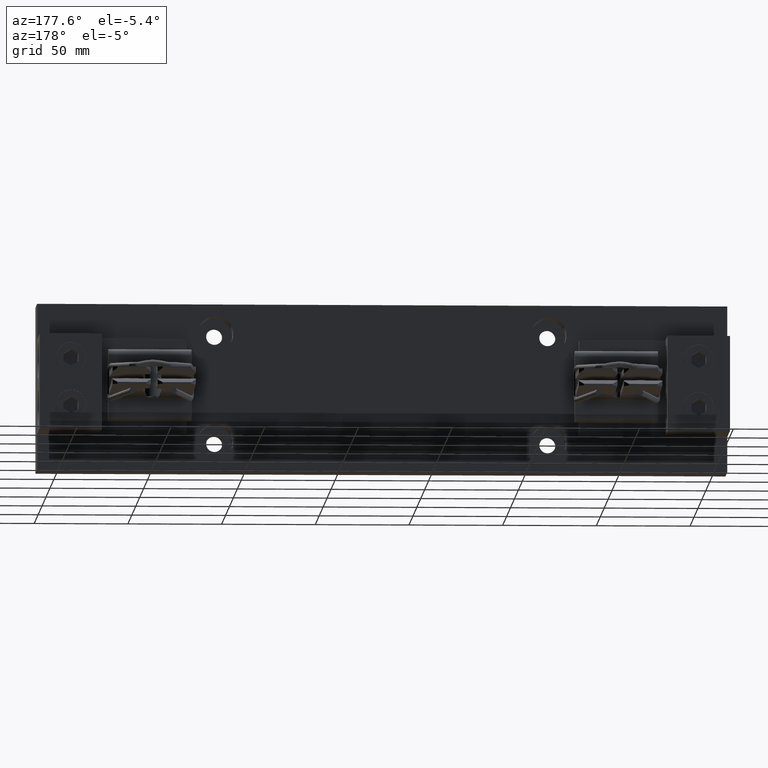
[diagram: clean part render]
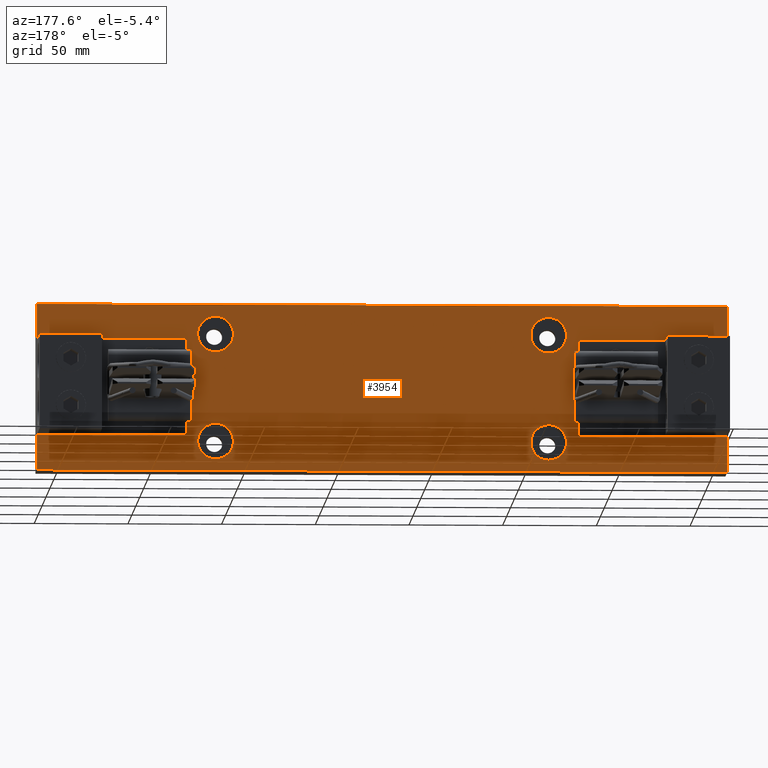
[diagram: same view with one face highlighted and labeled with its STEP entity id]
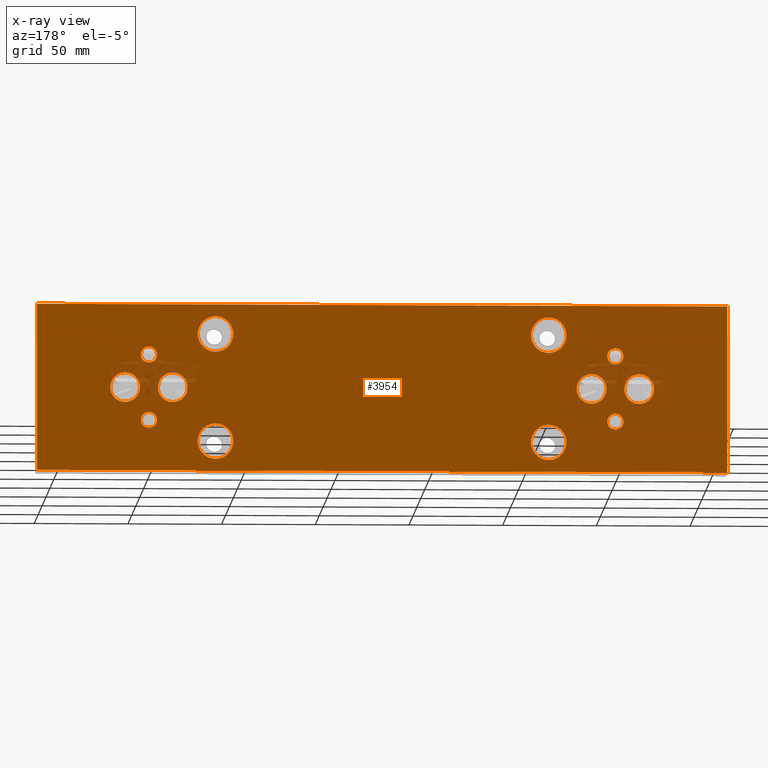
[diagram: x-ray of the same camera — body ghosted, the highlighted face saturated]
A machine part, auxiliary view. The second image highlights one B-rep face of the part: STEP entity #3954.
The next image is the same camera in x-ray: the body ghosted, the highlighted face saturated — about 3% of this face is hidden behind the body in this view.
In plain terms, the highlighted planar face has unit normal (0, 1, 0).
Its self-contained STEP definition (entity closure, byte-faithful):
#159 = FACE_BOUND ( 'NONE', #12221, .T. ) ;
#246 = CARTESIAN_POINT ( 'NONE',  ( 9.800000000000000700, -0.3120000000000000000, 0.6899999999999986100 ) ) ;
#342 = CIRCLE ( 'NONE', #13129, 0.3124999999999993300 ) ;
#612 = AXIS2_PLACEMENT_3D ( 'NONE', #3263, #16590, #5165 ) ;
#680 = VECTOR ( 'NONE', #15142, 39.37007874015748100 ) ;
#770 = VERTEX_POINT ( 'NONE', #16474 ) ;
#798 = FACE_BOUND ( 'NONE', #14812, .T. ) ;
#843 = DIRECTION ( 'NONE',  ( -0.0000000000000000000, -1.000000000000000000, -0.0000000000000000000 ) ) ;
#992 = DIRECTION ( 'NONE',  ( 0.0000000000000000000, 1.000000000000000000, 0.0000000000000000000 ) ) ;
#1105 = CARTESIAN_POINT ( 'NONE',  ( 0.5000000000000006700, -0.3120000000000000000, -2.390366994456230100E-016 ) ) ;
#1227 = CARTESIAN_POINT ( 'NONE',  ( 0.5000000000000006700, -0.3120000000000000000, 0.3124999999999996100 ) ) ;
#1287 = ORIENTED_EDGE ( 'NONE', *, *, #17663, .T. ) ;
#1779 = DIRECTION ( 'NONE',  ( -0.0000000000000000000, 1.000000000000000000, -0.0000000000000000000 ) ) ;
#1922 = CARTESIAN_POINT ( 'NONE',  ( 5.463695987328526400E-016, -0.3120000000000000000, 0.5204999999999987400 ) ) ;
#1967 = FACE_BOUND ( 'NONE', #13149, .T. ) ;
#2164 = DIRECTION ( 'NONE',  ( 0.0000000000000000000, 0.0000000000000000000, -1.000000000000000000 ) ) ;
#2362 = ORIENTED_EDGE ( 'NONE', *, *, #10186, .T. ) ;
#2555 = ORIENTED_EDGE ( 'NONE', *, *, #24280, .T. ) ;
#2640 = ORIENTED_EDGE ( 'NONE', *, *, #6850, .F. ) ;
#2656 = CIRCLE ( 'NONE', #612, 0.3749999999999996700 ) ;
#2742 = ORIENTED_EDGE ( 'NONE', *, *, #17674, .T. ) ;
#2945 = AXIS2_PLACEMENT_3D ( 'NONE', #8942, #22255, #10827 ) ;
#3022 = DIRECTION ( 'NONE',  ( 0.0000000000000000000, 0.0000000000000000000, 1.000000000000000000 ) ) ;
#3263 = CARTESIAN_POINT ( 'NONE',  ( 8.400000000000002100, -0.3120000000000000000, -1.129999999999999700 ) ) ;
#3341 = CARTESIAN_POINT ( 'NONE',  ( -2.349999999999999200, -0.3120000000000000000, 1.750000000000000200 ) ) ;
#3660 = CIRCLE ( 'NONE', #15839, 0.3749999999999996700 ) ;
#3663 = CARTESIAN_POINT ( 'NONE',  ( 12.15000000000000200, -0.3120000000000000000, -1.750000000000001300 ) ) ;
#3954 = ADVANCED_FACE ( 'NONE', ( #10919, #16605, #1967, #16024, #5867, #798, #20449, #15388, #10310, #5269, #159, #19854, #14799 ), #24142, .T. ) ;
#4386 = LINE ( 'NONE', #23879, #14526 ) ;
#4810 = CARTESIAN_POINT ( 'NONE',  ( 1.400000000000001000, -0.3120000000000000000, 1.504999999999999900 ) ) ;
#5000 = EDGE_LOOP ( 'NONE', ( #2640 ) ) ;
#5165 = DIRECTION ( 'NONE',  ( 0.0000000000000000000, 0.0000000000000000000, 1.000000000000000000 ) ) ;
#5210 = CARTESIAN_POINT ( 'NONE',  ( 1.400000000000001000, -0.3120000000000000000, -0.7550000000000000000 ) ) ;
#5249 = DIRECTION ( 'NONE',  ( -0.0000000000000000000, -0.0000000000000000000, 1.000000000000000000 ) ) ;
#5269 = FACE_BOUND ( 'NONE', #5000, .T. ) ;
#5482 = EDGE_LOOP ( 'NONE', ( #2555 ) ) ;
#5630 = ORIENTED_EDGE ( 'NONE', *, *, #24121, .T. ) ;
#5827 = CARTESIAN_POINT ( 'NONE',  ( 9.300000000000002500, -0.3120000000000000000, -2.390366994456230100E-016 ) ) ;
#5867 = FACE_BOUND ( 'NONE', #5482, .T. ) ;
#6573 = VECTOR ( 'NONE', #18344, 39.37007874015748100 ) ;
#6634 = DIRECTION ( 'NONE',  ( -0.0000000000000000000, -1.000000000000000000, -0.0000000000000000000 ) ) ;
#6850 = EDGE_CURVE ( 'NONE', #20130, #20130, #13644, .T. ) ;
#6961 = CARTESIAN_POINT ( 'NONE',  ( -2.349999999999999200, -0.3120000000000000000, 1.750000000000000200 ) ) ;
#7032 = ORIENTED_EDGE ( 'NONE', *, *, #21193, .F. ) ;
#7039 = AXIS2_PLACEMENT_3D ( 'NONE', #246, #13585, #2164 ) ;
#7492 = CARTESIAN_POINT ( 'NONE',  ( 1.400000000000001000, -0.3120000000000000000, -1.129999999999999700 ) ) ;
#7654 = CIRCLE ( 'NONE', #15478, 0.3124999999999993300 ) ;
#7734 = DIRECTION ( 'NONE',  ( 0.0000000000000000000, 0.0000000000000000000, 1.000000000000000000 ) ) ;
#7746 = ORIENTED_EDGE ( 'NONE', *, *, #10338, .F. ) ;
#8399 = EDGE_CURVE ( 'NONE', #18930, #18930, #20484, .T. ) ;
#8629 = EDGE_CURVE ( 'NONE', #8857, #8857, #7654, .T. ) ;
#8857 = VERTEX_POINT ( 'NONE', #16321 ) ;
#8942 = CARTESIAN_POINT ( 'NONE',  ( 9.800000000000000700, -0.3120000000000000000, -0.6900000000000012800 ) ) ;
#8969 = CARTESIAN_POINT ( 'NONE',  ( 4.900000000000002100, -0.3120000000000000000, -2.390366994456230100E-016 ) ) ;
#9103 = VERTEX_POINT ( 'NONE', #9440 ) ;
#9399 = DIRECTION ( 'NONE',  ( 0.0000000000000000000, 0.0000000000000000000, 1.000000000000000000 ) ) ;
#9440 = CARTESIAN_POINT ( 'NONE',  ( 8.400000000000002100, -0.3120000000000000000, -0.7550000000000000000 ) ) ;
#9869 = VERTEX_POINT ( 'NONE', #11509 ) ;
#10069 = EDGE_CURVE ( 'NONE', #21022, #21022, #12079, .T. ) ;
#10089 = ORIENTED_EDGE ( 'NONE', *, *, #22653, .F. ) ;
#10133 = CIRCLE ( 'NONE', #22102, 0.3749999999999996700 ) ;
#10151 = EDGE_CURVE ( 'NONE', #15994, #15994, #14774, .T. ) ;
#10186 = EDGE_CURVE ( 'NONE', #10885, #10885, #18348, .T. ) ;
#10241 = CARTESIAN_POINT ( 'NONE',  ( 12.15000000000000200, -0.3120000000000000000, -1.750000000000001300 ) ) ;
#10251 = VERTEX_POINT ( 'NONE', #24616 ) ;
#10310 = FACE_BOUND ( 'NONE', #19312, .T. ) ;
#10336 = AXIS2_PLACEMENT_3D ( 'NONE', #5827, #19118, #7734 ) ;
#10338 = EDGE_CURVE ( 'NONE', #770, #770, #10133, .T. ) ;
#10623 = ORIENTED_EDGE ( 'NONE', *, *, #8399, .T. ) ;
#10827 = DIRECTION ( 'NONE',  ( 0.0000000000000000000, 0.0000000000000000000, -1.000000000000000000 ) ) ;
#10849 = DIRECTION ( 'NONE',  ( 0.0000000000000000000, -0.0000000000000000000, 1.000000000000000000 ) ) ;
#10885 = VERTEX_POINT ( 'NONE', #14549 ) ;
#10919 = FACE_BOUND ( 'NONE', #11253, .T. ) ;
#10999 = VECTOR ( 'NONE', #5249, 39.37007874015748100 ) ;
#11043 = DIRECTION ( 'NONE',  ( -0.0000000000000000000, 1.000000000000000000, -0.0000000000000000000 ) ) ;
#11198 = DIRECTION ( 'NONE',  ( 0.0000000000000000000, 1.000000000000000000, 0.0000000000000000000 ) ) ;
#11253 = EDGE_LOOP ( 'NONE', ( #17678 ) ) ;
#11407 = LINE ( 'NONE', #3663, #680 ) ;
#11439 = ORIENTED_EDGE ( 'NONE', *, *, #10069, .T. ) ;
#11452 = EDGE_CURVE ( 'NONE', #14077, #23867, #4386, .T. ) ;
#11509 = CARTESIAN_POINT ( 'NONE',  ( -2.349999999999999200, -0.3120000000000000000, -1.749999999999999600 ) ) ;
#12079 = CIRCLE ( 'NONE', #21778, 0.1694999999999999300 ) ;
#12106 = VERTEX_POINT ( 'NONE', #6961 ) ;
#12124 = EDGE_LOOP ( 'NONE', ( #2362 ) ) ;
#12221 = EDGE_LOOP ( 'NONE', ( #23654 ) ) ;
#12228 = CARTESIAN_POINT ( 'NONE',  ( 5.463695987328526400E-016, -0.3120000000000000000, 0.6899999999999986100 ) ) ;
#12327 = AXIS2_PLACEMENT_3D ( 'NONE', #1105, #14418, #3022 ) ;
#12357 = VERTEX_POINT ( 'NONE', #5210 ) ;
#12365 = CARTESIAN_POINT ( 'NONE',  ( -0.4999999999999990600, -0.3120000000000000000, -2.390366994456230100E-016 ) ) ;
#12411 = DIRECTION ( 'NONE',  ( 0.0000000000000000000, 0.0000000000000000000, -1.000000000000000000 ) ) ;
#12609 = CARTESIAN_POINT ( 'NONE',  ( 5.463695987328526400E-016, -0.3120000000000000000, -0.8595000000000011500 ) ) ;
#12857 = CIRCLE ( 'NONE', #13939, 0.1694999999999999300 ) ;
#13129 = AXIS2_PLACEMENT_3D ( 'NONE', #12365, #992, #14298 ) ;
#13149 = EDGE_LOOP ( 'NONE', ( #14600 ) ) ;
#13169 = AXIS2_PLACEMENT_3D ( 'NONE', #13182, #1779, #15100 ) ;
#13182 = CARTESIAN_POINT ( 'NONE',  ( 1.400000000000001000, -0.3120000000000000000, 1.130000000000000300 ) ) ;
#13253 = CARTESIAN_POINT ( 'NONE',  ( 9.300000000000002500, -0.3120000000000000000, 0.3124999999999990600 ) ) ;
#13456 = EDGE_CURVE ( 'NONE', #12357, #12357, #3660, .T. ) ;
#13533 = VERTEX_POINT ( 'NONE', #13253 ) ;
#13585 = DIRECTION ( 'NONE',  ( -0.0000000000000000000, -1.000000000000000000, -0.0000000000000000000 ) ) ;
#13644 = CIRCLE ( 'NONE', #13169, 0.3749999999999996700 ) ;
#13939 = AXIS2_PLACEMENT_3D ( 'NONE', #12228, #843, #14168 ) ;
#13994 = ORIENTED_EDGE ( 'NONE', *, *, #11452, .T. ) ;
#14077 = VERTEX_POINT ( 'NONE', #17008 ) ;
#14168 = DIRECTION ( 'NONE',  ( 0.0000000000000000000, 0.0000000000000000000, -1.000000000000000000 ) ) ;
#14298 = DIRECTION ( 'NONE',  ( 0.0000000000000000000, 0.0000000000000000000, 1.000000000000000000 ) ) ;
#14377 = CARTESIAN_POINT ( 'NONE',  ( 9.800000000000000700, -0.3120000000000000000, 0.5204999999999993000 ) ) ;
#14418 = DIRECTION ( 'NONE',  ( 0.0000000000000000000, 1.000000000000000000, 0.0000000000000000000 ) ) ;
#14526 = VECTOR ( 'NONE', #12411, 39.37007874015748100 ) ;
#14549 = CARTESIAN_POINT ( 'NONE',  ( 9.800000000000000700, -0.3120000000000000000, -0.8595000000000006000 ) ) ;
#14600 = ORIENTED_EDGE ( 'NONE', *, *, #10151, .F. ) ;
#14774 = CIRCLE ( 'NONE', #12327, 0.3124999999999998900 ) ;
#14799 = FACE_OUTER_BOUND ( 'NONE', #19449, .T. ) ;
#14812 = EDGE_LOOP ( 'NONE', ( #11439 ) ) ;
#14970 = EDGE_LOOP ( 'NONE', ( #7032 ) ) ;
#15100 = DIRECTION ( 'NONE',  ( 0.0000000000000000000, 0.0000000000000000000, 1.000000000000000000 ) ) ;
#15142 = DIRECTION ( 'NONE',  ( -1.000000000000000000, 0.0000000000000000000, 1.130419859447281300E-016 ) ) ;
#15388 = FACE_BOUND ( 'NONE', #12124, .T. ) ;
#15478 = AXIS2_PLACEMENT_3D ( 'NONE', #22624, #11198, #24548 ) ;
#15839 = AXIS2_PLACEMENT_3D ( 'NONE', #7492, #20804, #9399 ) ;
#15994 = VERTEX_POINT ( 'NONE', #1227 ) ;
#16024 = FACE_BOUND ( 'NONE', #14970, .T. ) ;
#16321 = CARTESIAN_POINT ( 'NONE',  ( 10.30000000000000100, -0.3120000000000000000, 0.3124999999999990600 ) ) ;
#16474 = CARTESIAN_POINT ( 'NONE',  ( 8.400000000000002100, -0.3120000000000000000, 1.504999999999999900 ) ) ;
#16590 = DIRECTION ( 'NONE',  ( -0.0000000000000000000, 1.000000000000000000, -0.0000000000000000000 ) ) ;
#16605 = FACE_BOUND ( 'NONE', #21554, .T. ) ;
#16681 = LINE ( 'NONE', #18502, #6573 ) ;
#16823 = VERTEX_POINT ( 'NONE', #1922 ) ;
#17008 = CARTESIAN_POINT ( 'NONE',  ( 12.15000000000000200, -0.3120000000000000000, 1.749999999999998200 ) ) ;
#17221 = CIRCLE ( 'NONE', #10336, 0.3124999999999993300 ) ;
#17663 = EDGE_CURVE ( 'NONE', #12106, #14077, #16681, .T. ) ;
#17674 = EDGE_CURVE ( 'NONE', #9869, #12106, #21140, .T. ) ;
#17678 = ORIENTED_EDGE ( 'NONE', *, *, #8629, .F. ) ;
#18020 = CARTESIAN_POINT ( 'NONE',  ( 5.463695987328526400E-016, -0.3120000000000000000, -0.6900000000000012800 ) ) ;
#18202 = AXIS2_PLACEMENT_3D ( 'NONE', #8969, #22274, #10849 ) ;
#18344 = DIRECTION ( 'NONE',  ( 1.000000000000000000, -0.0000000000000000000, -1.318823169355161500E-016 ) ) ;
#18348 = CIRCLE ( 'NONE', #2945, 0.1694999999999993700 ) ;
#18502 = CARTESIAN_POINT ( 'NONE',  ( 12.15000000000000200, -0.3120000000000000000, 1.749999999999998200 ) ) ;
#18612 = ORIENTED_EDGE ( 'NONE', *, *, #13456, .F. ) ;
#18823 = EDGE_LOOP ( 'NONE', ( #7746 ) ) ;
#18930 = VERTEX_POINT ( 'NONE', #14377 ) ;
#19118 = DIRECTION ( 'NONE',  ( 0.0000000000000000000, 1.000000000000000000, 0.0000000000000000000 ) ) ;
#19312 = EDGE_LOOP ( 'NONE', ( #18612 ) ) ;
#19449 = EDGE_LOOP ( 'NONE', ( #2742, #1287, #13994, #5630 ) ) ;
#19854 = FACE_BOUND ( 'NONE', #18823, .T. ) ;
#19909 = DIRECTION ( 'NONE',  ( 0.0000000000000000000, 0.0000000000000000000, -1.000000000000000000 ) ) ;
#20130 = VERTEX_POINT ( 'NONE', #4810 ) ;
#20446 = EDGE_LOOP ( 'NONE', ( #10623 ) ) ;
#20449 = FACE_BOUND ( 'NONE', #20446, .T. ) ;
#20484 = CIRCLE ( 'NONE', #7039, 0.1694999999999993700 ) ;
#20804 = DIRECTION ( 'NONE',  ( -0.0000000000000000000, 1.000000000000000000, -0.0000000000000000000 ) ) ;
#21022 = VERTEX_POINT ( 'NONE', #12609 ) ;
#21140 = LINE ( 'NONE', #3341, #10999 ) ;
#21193 = EDGE_CURVE ( 'NONE', #10251, #10251, #342, .T. ) ;
#21554 = EDGE_LOOP ( 'NONE', ( #10089 ) ) ;
#21778 = AXIS2_PLACEMENT_3D ( 'NONE', #18020, #6634, #19909 ) ;
#22102 = AXIS2_PLACEMENT_3D ( 'NONE', #22467, #11043, #24406 ) ;
#22255 = DIRECTION ( 'NONE',  ( -0.0000000000000000000, -1.000000000000000000, -0.0000000000000000000 ) ) ;
#22274 = DIRECTION ( 'NONE',  ( 0.0000000000000000000, 1.000000000000000000, 0.0000000000000000000 ) ) ;
#22413 = EDGE_CURVE ( 'NONE', #9103, #9103, #2656, .T. ) ;
#22467 = CARTESIAN_POINT ( 'NONE',  ( 8.400000000000002100, -0.3120000000000000000, 1.130000000000000300 ) ) ;
#22624 = CARTESIAN_POINT ( 'NONE',  ( 10.30000000000000100, -0.3120000000000000000, -2.390366994456230100E-016 ) ) ;
#22653 = EDGE_CURVE ( 'NONE', #13533, #13533, #17221, .T. ) ;
#23654 = ORIENTED_EDGE ( 'NONE', *, *, #22413, .F. ) ;
#23867 = VERTEX_POINT ( 'NONE', #10241 ) ;
#23879 = CARTESIAN_POINT ( 'NONE',  ( 12.15000000000000200, -0.3120000000000000000, 1.749999999999998200 ) ) ;
#24121 = EDGE_CURVE ( 'NONE', #23867, #9869, #11407, .T. ) ;
#24142 = PLANE ( 'NONE',  #18202 ) ;
#24280 = EDGE_CURVE ( 'NONE', #16823, #16823, #12857, .T. ) ;
#24406 = DIRECTION ( 'NONE',  ( 0.0000000000000000000, 0.0000000000000000000, 1.000000000000000000 ) ) ;
#24548 = DIRECTION ( 'NONE',  ( 0.0000000000000000000, 0.0000000000000000000, 1.000000000000000000 ) ) ;
#24616 = CARTESIAN_POINT ( 'NONE',  ( -0.4999999999999990600, -0.3120000000000000000, 0.3124999999999990600 ) ) ;